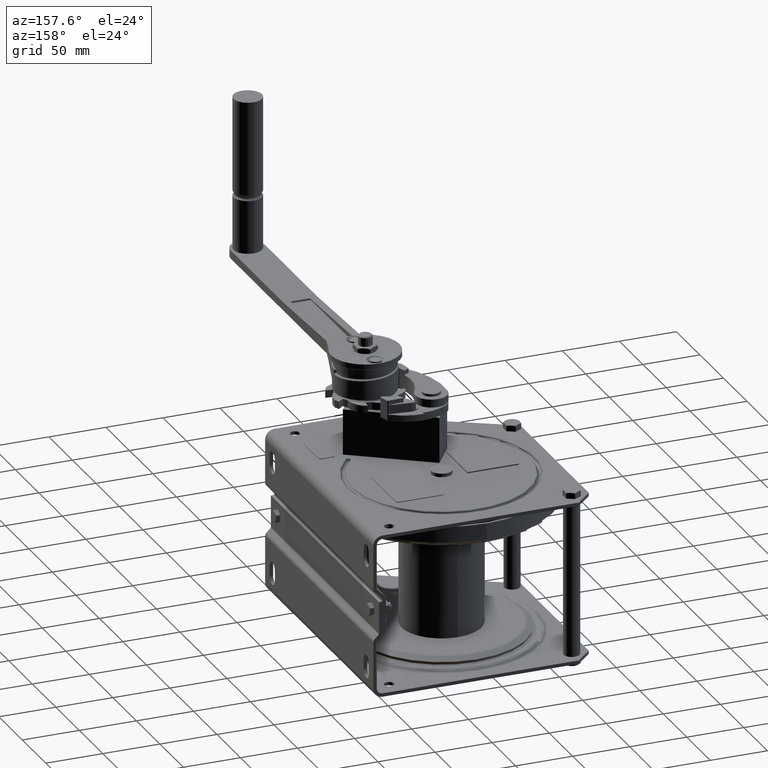
[diagram: clean part render]
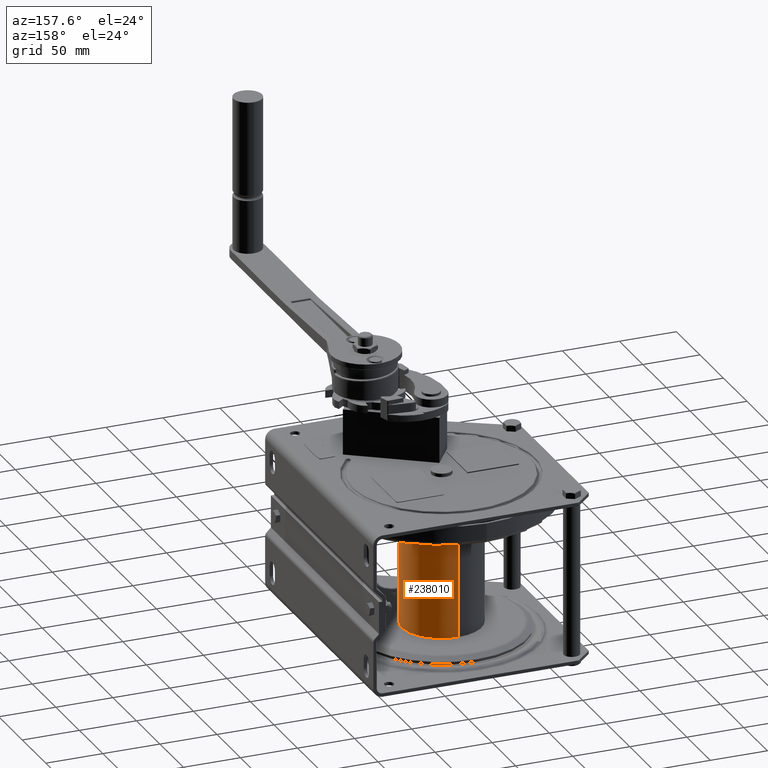
[diagram: same view with one face highlighted and labeled with its STEP entity id]
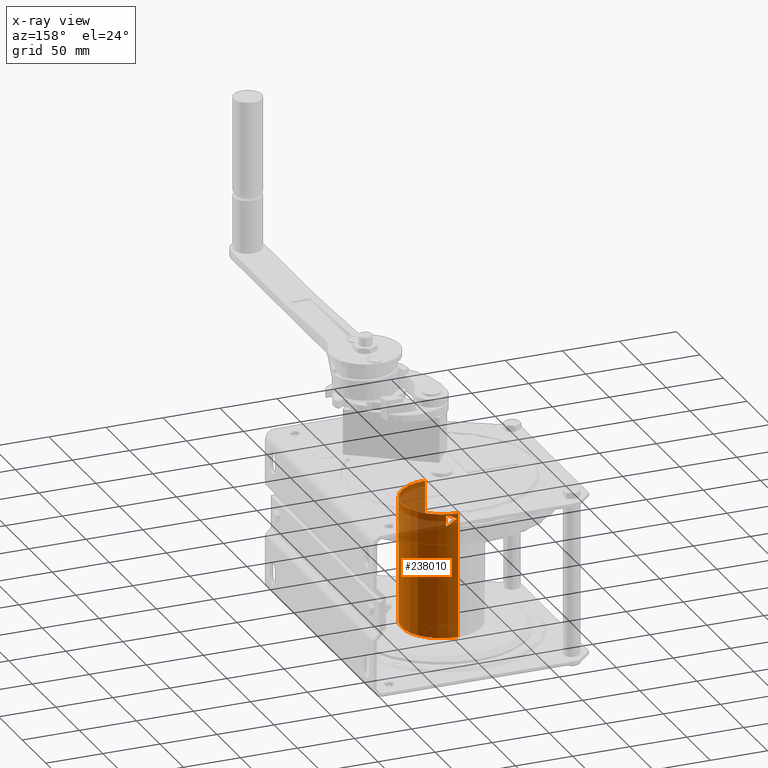
[diagram: x-ray of the same camera — body ghosted, the highlighted face saturated]
A machine part, auxiliary view. The second image highlights one B-rep face of the part: STEP entity #238010.
The next image is the same camera in x-ray: the body ghosted, the highlighted face saturated — about 18% of this face is hidden behind the body in this view.
In plain terms, the highlighted cylindrical surface (partial cylindrical patch) has radius 35 mm, axis along (0, 0, -1).
Its self-contained STEP definition (entity closure, byte-faithful):
#232930=CARTESIAN_POINT('',(-38.9683450918841,-260.918201438849,0.));
#232940=DIRECTION('',(1.,0.,0.));
#232950=DIRECTION('',(0.,-1.,0.));
#232960=AXIS2_PLACEMENT_3D('',#232930,#232940,#232950);
#232970=CIRCLE('',#232960,35.);
#232980=CARTESIAN_POINT('',(-38.9683450918841,-225.918201438849,
-4.28626379701574E-15));
#232990=VERTEX_POINT('',#232980);
#233000=CARTESIAN_POINT('',(-38.9683450918841,-295.918201438849,0.));
#233010=VERTEX_POINT('',#233000);
#233040=CARTESIAN_POINT('',(-38.9683450918841,-225.919093943116,
-0.249948999013061));
#233050=VERTEX_POINT('',#233040);
#233060=EDGE_CURVE('',#233050,#232990,#232970,.T.);
#233080=EDGE_CURVE('',#233010,#233050,#232970,.T.);
#234020=CARTESIAN_POINT('',(-143.468345091884,-285.918201438849,-10.));
#234030=DIRECTION('',(-6.12323399573677E-17,0.,-1.));
#234040=DIRECTION('',(0.,-1.,0.));
#234050=AXIS2_PLACEMENT_3D('',#234020,#234030,#234040);
#234060=CYLINDRICAL_SURFACE('',#234050,10.);
#234130=CARTESIAN_POINT('',(-147.468345091884,-295.083352828761,
-7.59884402421954));
#234140=VERTEX_POINT('',#234130);
#234170=CARTESIAN_POINT('',(-35.9683450918841,-260.918201438849,0.));
#234180=DIRECTION('',(1.,0.,0.));
#234190=DIRECTION('',(0.,-1.,0.));
#234200=AXIS2_PLACEMENT_3D('',#234170,#234180,#234190);
#234210=CYLINDRICAL_SURFACE('',#234200,35.);
#234220=CARTESIAN_POINT('',(-147.468345091768,-295.083352828811,
-7.59884402399263));
#234230=CARTESIAN_POINT('',(-147.325440111651,-295.14572167534,
-7.31842754525649));
#234240=CARTESIAN_POINT('',(-147.181557377765,-295.20453839995,
-7.03769157095227));
#234250=CARTESIAN_POINT('',(-147.036838732304,-295.259820845477,
-6.75671344148383));
#234260=CARTESIAN_POINT('',(-146.892120088024,-295.315103290552,
-6.4757353143086));
#234270=CARTESIAN_POINT('',(-146.746565505664,-295.366851433162,
-6.19451503984975));
#234280=CARTESIAN_POINT('',(-146.600314149062,-295.415083549567,
-5.91313154252594));
#234290=CARTESIAN_POINT('',(-146.307811392201,-295.511547796775,
-5.35036446388387));
#234300=CARTESIAN_POINT('',(-146.012523692891,-295.593946746253,
-4.78694356591658));
#234310=CARTESIAN_POINT('',(-145.715537025856,-295.662437089323,
-4.22351619673689));
#234320=CARTESIAN_POINT('',(-145.567037334468,-295.696683727094,
-3.94179045033287));
#234330=CARTESIAN_POINT('',(-145.418160922785,-295.727445555819,
-3.66015487839651));
#234340=CARTESIAN_POINT('',(-145.268813509913,-295.754781813943,
-3.37826401715791));
#234350=CARTESIAN_POINT('',(-145.119477636553,-295.782115959897,
-3.09639493656417));
#234360=CARTESIAN_POINT('',(-144.969730977847,-295.806010622822,
-2.81438487289494));
#234370=CARTESIAN_POINT('',(-144.819693308609,-295.826473639246,
-2.53229776744567));
#234380=CARTESIAN_POINT('',(-144.669651826217,-295.84693717573,
-2.25020349285244));
#234390=CARTESIAN_POINT('',(-144.519335826542,-295.863967351479,
-1.96806316421971));
#234400=CARTESIAN_POINT('',(-144.368817036788,-295.877576433117,
-1.68585290288933));
#234410=CARTESIAN_POINT('',(-144.218294330259,-295.891185868887,
-1.40363529793184));
#234420=CARTESIAN_POINT('',(-144.067559649131,-295.901374153535,
-1.12133069659689));
#234430=CARTESIAN_POINT('',(-143.916729589962,-295.908143948287,
-0.839001302858227));
#234440=B_SPLINE_CURVE_WITH_KNOTS('',3,(#234220,#234230,#234240,#234250,
#234260,#234270,#234280,#234290,#234300,#234310,#234320,#234330,#234340,
#234350,#234360,#234370,#234380,#234390,#234400,#234410,#234420,#234430)
,.UNSPECIFIED.,.F.,.F.,(4,3,3,3,3,3,3,4),(0.,0.962581418104836,
1.92504170407121,3.84842834287451,4.8089370842647,5.76942830505837,
6.72984760557959,7.69032156796743),.UNSPECIFIED.);
#234450=SURFACE_CURVE('',#234440,(#234060,#234210),.CURVE_3D.);
#234460=CARTESIAN_POINT('',(-143.916729589962,-295.908143948287,
-0.839001302858227));
#234470=VERTEX_POINT('',#234460);
#234480=EDGE_CURVE('',#234140,#234470,#234450,.T.);
#234500=CARTESIAN_POINT('',(-135.468345091884,-298.853036883694,
-3.5527136788005E-15));
#234510=DIRECTION('',(0.,-1.,0.));
#234520=DIRECTION('',(1.,0.,-6.12323399573677E-17));
#234530=AXIS2_PLACEMENT_3D('',#234500,#234510,#234520);
#234540=CONICAL_SURFACE('',#234530,11.4348354448452,0.78539816339745);
#235390=CARTESIAN_POINT('',(-140.069750117777,-295.322963647538,
-6.42746741443283));
#235400=VERTEX_POINT('',#235390);
#235430=CARTESIAN_POINT('',(-140.069750117777,-295.322963647538,
-6.42746741443283));
#235440=CARTESIAN_POINT('',(-140.008492185176,-295.300826894131,
-6.54596038964702));
#235450=CARTESIAN_POINT('',(-139.947358753231,-295.278058463843,
-6.6644434834667));
#235460=CARTESIAN_POINT('',(-139.886361431421,-295.254656497177,
-6.7829089649965));
#235470=CARTESIAN_POINT('',(-139.825364109645,-295.231254530524,
-6.90137444645938));
#235480=CARTESIAN_POINT('',(-139.764502898105,-295.207219027942,
-7.01982231485038));
#235490=CARTESIAN_POINT('',(-139.703789491544,-295.182548211933,
-7.13824489730203));
#235500=CARTESIAN_POINT('',(-139.643076084953,-295.157877395911,
-7.25666747981379));
#235510=CARTESIAN_POINT('',(-139.582510483378,-295.132571266926,
-7.37506477566566));
#235520=CARTESIAN_POINT('',(-139.522104469048,-295.106628123907,
-7.49342917497956));
#235530=CARTESIAN_POINT('',(-139.461698454632,-295.08068498085,
-7.61179357446272));
#235540=CARTESIAN_POINT('',(-139.401452027429,-295.054104824235,
-7.73012507675286));
#235550=CARTESIAN_POINT('',(-139.341377059975,-295.026886023552,
-7.84841613965964));
#235560=B_SPLINE_CURVE_WITH_KNOTS('',3,(#235430,#235440,#235450,#235460,
#235470,#235480,#235490,#235500,#235510,#235520,#235530,#235540,#235550)
,.UNSPECIFIED.,.F.,.F.,(4,3,3,3,4),(0.,0.405755124734504,
0.811707103973105,1.21782342226261,1.62407242181275),.UNSPECIFIED.);
#235570=SURFACE_CURVE('',#235560,(#234060,#234210),.CURVE_3D.);
#235580=CARTESIAN_POINT('',(-139.341377059975,-295.026886023552,
-7.84841613965976));
#235590=VERTEX_POINT('',#235580);
#235600=EDGE_CURVE('',#235400,#235590,#235570,.T.);
#236630=CARTESIAN_POINT('',(-35.9683450918841,-260.918201438849,0.));
#236640=DIRECTION('',(1.,0.,0.));
#236650=DIRECTION('',(0.,-1.,0.));
#236660=AXIS2_PLACEMENT_3D('',#236630,#236640,#236650);
#236670=CYLINDRICAL_SURFACE('',#236660,35.);
#236680=ORIENTED_EDGE('',*,*,#233060,.F.);
#236690=CARTESIAN_POINT('',(-35.9683450918841,-225.918201438849,
-4.28626379701574E-15));
#236700=DIRECTION('',(1.,0.,0.));
#236710=VECTOR('',#236700,1.);
#236720=LINE('',#236690,#236710);
#236730=CARTESIAN_POINT('',(-148.968345091884,-225.918201438849,
-4.28626379701574E-15));
#236740=VERTEX_POINT('',#236730);
#236750=EDGE_CURVE('',#236740,#232990,#236720,.T.);
#236760=ORIENTED_EDGE('',*,*,#236750,.T.);
#236770=CARTESIAN_POINT('',(-148.968345091884,-260.918201438849,0.));
#236780=DIRECTION('',(1.,0.,0.));
#236790=DIRECTION('',(0.,-1.,0.));
#236800=AXIS2_PLACEMENT_3D('',#236770,#236780,#236790);
#236810=CIRCLE('',#236800,35.);
#236820=CARTESIAN_POINT('',(-148.968345091884,-225.919093943116,
-0.249948999013076));
#236830=VERTEX_POINT('',#236820);
#236840=EDGE_CURVE('',#236830,#236740,#236810,.T.);
#236850=ORIENTED_EDGE('',*,*,#236840,.T.);
#236860=CARTESIAN_POINT('',(-148.968345091884,-295.918201438849,0.));
#236870=VERTEX_POINT('',#236860);
#236880=EDGE_CURVE('',#236870,#236830,#236810,.T.);
#236890=ORIENTED_EDGE('',*,*,#236880,.T.);
#236900=CARTESIAN_POINT('',(-35.9683450918841,-295.918201438849,0.));
#236910=DIRECTION('',(1.,0.,0.));
#236920=VECTOR('',#236910,1.);
#236930=LINE('',#236900,#236920);
#236940=EDGE_CURVE('',#236870,#233010,#236930,.T.);
#236950=ORIENTED_EDGE('',*,*,#236940,.F.);
#236960=ORIENTED_EDGE('',*,*,#233080,.F.);
#236970=EDGE_LOOP('',(#236960,#236950,#236890,#236850,#236760,#236680));
#236980=FACE_OUTER_BOUND('',#236970,.T.);
#236990=CARTESIAN_POINT('',(-140.069750117779,-295.322963647541,
-6.42746741444121));
#237000=CARTESIAN_POINT('',(-140.196464336354,-295.33674455031,
-6.35370139553831));
#237010=CARTESIAN_POINT('',(-140.321131677864,-295.35085908819,
-6.27683584867277));
#237020=CARTESIAN_POINT('',(-140.443524866962,-295.365222618656,
-6.1969937742407));
#237030=CARTESIAN_POINT('',(-140.565918420972,-295.379586191947,
-6.11715146176167));
#237040=CARTESIAN_POINT('',(-140.686036673117,-295.394198513068,
-6.03433359561354));
#237050=CARTESIAN_POINT('',(-140.803673406592,-295.408972708105,
-5.94867188974558));
#237060=CARTESIAN_POINT('',(-140.921249294917,-295.423739261498,
-5.86305449061007));
#237070=CARTESIAN_POINT('',(-141.03691018196,-295.438738589521,
-5.7741853756114));
#237080=CARTESIAN_POINT('',(-141.150376082324,-295.453882966303,
-5.68213880808841));
#237090=CARTESIAN_POINT('',(-141.263838552689,-295.469026885281,
-5.59009502307145));
#237100=CARTESIAN_POINT('',(-141.375090775184,-295.484313799798,
-5.49488511641187));
#237110=CARTESIAN_POINT('',(-141.483821068822,-295.499644794013,
-5.39664483485828));
#237120=CARTESIAN_POINT('',(-141.59255110661,-295.514975752153,
-5.29840478447099));
#237130=CARTESIAN_POINT('',(-141.698757279006,-295.530350402599,
-5.19713594713857));
#237140=CARTESIAN_POINT('',(-141.802142292596,-295.545666056756,
-5.09300443113764));
#237150=CARTESIAN_POINT('',(-141.905527222676,-295.560981698542,
-4.98887299924954));
#237160=CARTESIAN_POINT('',(-142.006089121955,-295.576237939489,
-4.88188071231229));
#237170=CARTESIAN_POINT('',(-142.103551853745,-295.591331097849,
-4.77221957271242));
#237180=CARTESIAN_POINT('',(-142.201014662486,-295.606424268125,
-4.66255834652959));
#237190=CARTESIAN_POINT('',(-142.295376548947,-295.621353951629,
-4.55023030786549));
#237200=CARTESIAN_POINT('',(-142.386388242627,-295.636018293801,
-4.43544730844481));
#237210=CARTESIAN_POINT('',(-142.477400165756,-295.650682672944,
-4.32066401964641));
#237220=CARTESIAN_POINT('',(-142.565060328549,-295.665081327983,
-4.20342798779397));
#237230=CARTESIAN_POINT('',(-142.649150822278,-295.679116934681,
-4.08396301300826));
#237240=CARTESIAN_POINT('',(-142.733245477903,-295.693153236045,
-3.9644921255358));
#237250=CARTESIAN_POINT('',(-142.813753725506,-295.70682351898,
-3.84281863596805));
#237260=CARTESIAN_POINT('',(-142.890535089789,-295.720044798119,
-3.71909919158471));
#237270=CARTESIAN_POINT('',(-142.928950890092,-295.726659762881,
-3.65719899596538));
#237280=CARTESIAN_POINT('',(-142.966528034265,-295.733178634953,
-3.59463456610807));
#237290=CARTESIAN_POINT('',(-143.003224808715,-295.739587721922,
-3.53143842152337));
#237300=CARTESIAN_POINT('',(-143.039921544267,-295.745996802098,
-3.46824234392375));
#237310=CARTESIAN_POINT('',(-143.075737823277,-295.752296077587,
-3.40441466397584));
#237320=CARTESIAN_POINT('',(-143.110633487671,-295.75847207083,
-3.33999136081335));
#237330=CARTESIAN_POINT('',(-143.145529122389,-295.764648058821,
-3.27556811243844));
#237340=CARTESIAN_POINT('',(-143.17950405716,-295.770700744801,
-3.21054936510515));
#237350=CARTESIAN_POINT('',(-143.212520191477,-295.776617021362,
-3.14497425694382));
#237360=CARTESIAN_POINT('',(-143.245536304443,-295.782533294097,
-3.07939919118806));
#237370=CARTESIAN_POINT('',(-143.277593534099,-295.788313137798,
-3.01326790038692));
#237380=CARTESIAN_POINT('',(-143.308656287411,-295.793943965323,
-2.94662234212093));
#237390=CARTESIAN_POINT('',(-143.339719026924,-295.799574790347,
-2.87997681346062));
#237400=CARTESIAN_POINT('',(-143.369787210858,-295.805056580087,
-2.81281716398234));
#237410=CARTESIAN_POINT('',(-143.398828150253,-295.810377410076,
-2.74518778828595));
#237420=CARTESIAN_POINT('',(-143.427869082696,-295.815698238791,
-2.67755842878022));
#237430=CARTESIAN_POINT('',(-143.455882696214,-295.820858089523,
-2.60945949966685));
#237440=CARTESIAN_POINT('',(-143.482839546407,-295.825845832476,
-2.54093740342014));
#237450=CARTESIAN_POINT('',(-143.509796395828,-295.830833575285,
-2.47241530913707));
#237460=CARTESIAN_POINT('',(-143.535696413682,-295.835649193339,
-2.40347021309857));
#237470=CARTESIAN_POINT('',(-143.560513680145,-295.840282470223,
-2.33415004620115));
#237480=CARTESIAN_POINT('',(-143.585330951358,-295.844915747993,
-2.26482986603711));
#237490=CARTESIAN_POINT('',(-143.609065410415,-295.849366669254,
-2.19513478761947));
#237500=CARTESIAN_POINT('',(-143.631694875725,-295.853626033416,
-2.12511373749543));
#237510=CARTESIAN_POINT('',(-143.654324350627,-295.857885399385,
-2.05509265769451));
#237520=CARTESIAN_POINT('',(-143.675848779832,-295.861953194923,
-1.98474578408298));
#237530=CARTESIAN_POINT('',(-143.696249859953,-295.865821318371,
-1.91412245075151));
#237540=CARTESIAN_POINT('',(-143.716650953773,-295.869689444415,
-1.84349907000183));
#237550=CARTESIAN_POINT('',(-143.735928656667,-295.873357887392,
-1.7725994103487));
#237560=CARTESIAN_POINT('',(-143.754068601154,-295.876819705243,
-1.70147256942807));
#237570=CARTESIAN_POINT('',(-143.772208562627,-295.880281526337,
-1.63034566190328));
#237580=CARTESIAN_POINT('',(-143.789210735149,-295.883536713994,
-1.55899175400967));
#237590=CARTESIAN_POINT('',(-143.805064653013,-295.886579521028,
-1.48745900844914));
#237600=CARTESIAN_POINT('',(-143.820918590223,-295.889622331774,
-1.41592617559911));
#237610=CARTESIAN_POINT('',(-143.835624254549,-295.892452756506,
-1.344214682728));
#237620=CARTESIAN_POINT('',(-143.849174945952,-295.895066249986,
-1.27237100857643));
#237630=CARTESIAN_POINT('',(-143.862722359876,-295.897679111346,
-1.2005447111177));
#237640=CARTESIAN_POINT('',(-143.875127013252,-295.900077392138,
-1.12852999395404));
#237650=CARTESIAN_POINT('',(-143.886391703851,-295.902258915092,
-1.05627766186038));
#237660=CARTESIAN_POINT('',(-143.897655053907,-295.904440178436,
-0.984033928087879));
#237670=CARTESIAN_POINT('',(-143.907771796913,-295.906403399068,
-0.911589649182646));
#237680=CARTESIAN_POINT('',(-143.916729589962,-295.908143948288,
-0.839001302873498));
#237690=B_SPLINE_CURVE_WITH_KNOTS('',3,(#236990,#237000,#237010,#237020,
#237030,#237040,#237050,#237060,#237070,#237080,#237090,#237100,#237110,
#237120,#237130,#237140,#237150,#237160,#237170,#237180,#237190,#237200,
#237210,#237220,#237230,#237240,#237250,#237260,#237270,#237280,#237290,
#237300,#237310,#237320,#237330,#237340,#237350,#237360,#237370,#237380,
#237390,#237400,#237410,#237420,#237430,#237440,#237450,#237460,#237470,
#237480,#237490,#237500,#237510,#237520,#237530,#237540,#237550,#237560,
#237570,#237580,#237590,#237600,#237610,#237620,#237630,#237640,#237650,
#237660,#237670,#237680),.UNSPECIFIED.,.F.,.F.,(4,3,3,3,3,3,3,3,3,3,3,3,
3,3,3,3,3,3,3,3,3,3,3,4),(0.,0.441195311615186,0.880885047804408,
1.32054740407049,1.76194518047936,2.2043152780822,2.64690452129513,
3.08901301132804,3.53002934287668,3.96948466244793,4.18925940911294,
4.40959733686588,4.63038115322217,4.85149115060468,5.07280713505581,
5.29421026387003,5.51558484208665,5.73682012907976,5.95781220712431,
6.17846596342078,6.39869723517543,6.61843516344594,6.83783739244973,
7.05731007655018),.UNSPECIFIED.);
#237700=SURFACE_CURVE('',#237690,(#234540,#234210),.CURVE_3D.);
#237710=EDGE_CURVE('',#235400,#234470,#237700,.T.);
#237720=ORIENTED_EDGE('',*,*,#237710,.F.);
#237730=ORIENTED_EDGE('',*,*,#234480,.T.);
#237740=CARTESIAN_POINT('',(-132.557450580084,-260.918201438849,0.));
#237750=DIRECTION('',(-0.916515138991168,0.4,5.61203665667813E-17));
#237760=DIRECTION('',(-0.4,-0.916515138991168,-1.28587913910472E-16));
#237770=AXIS2_PLACEMENT_3D('',#237740,#237750,#237760);
#237780=ELLIPSE('',#237770,38.1881307912987,35.);
#237790=CARTESIAN_POINT('',(-147.195951674312,-294.459221101346,-10.));
#237800=VERTEX_POINT('',#237790);
#237810=EDGE_CURVE('',#237800,#234140,#237780,.T.);
#237820=ORIENTED_EDGE('',*,*,#237810,.T.);
#237830=CARTESIAN_POINT('',(-35.9683450918841,-294.459221101346,-10.));
#237840=DIRECTION('',(1.,0.,0.));
#237850=VECTOR('',#237840,1.);
#237860=LINE('',#237830,#237850);
#237870=CARTESIAN_POINT('',(-138.088476459293,-294.459221101346,-10.));
#237880=VERTEX_POINT('',#237870);
#237890=EDGE_CURVE('',#237800,#237880,#237860,.T.);
#237900=ORIENTED_EDGE('',*,*,#237890,.F.);
#237910=CARTESIAN_POINT('',(-64.059657628427,-260.918201438849,0.));
#237920=DIRECTION('',(0.412696803190931,-0.910868458470259,
-2.52703909523059E-17));
#237930=DIRECTION('',(0.910868458470259,0.412696803190931,
1.1449523215368E-17));
#237940=AXIS2_PLACEMENT_3D('',#237910,#237920,#237930);
#237950=ELLIPSE('',#237940,84.808023055627,35.);
#237960=EDGE_CURVE('',#235590,#237880,#237950,.T.);
#237970=ORIENTED_EDGE('',*,*,#237960,.T.);
#237980=ORIENTED_EDGE('',*,*,#235600,.T.);
#237990=EDGE_LOOP('',(#237980,#237970,#237900,#237820,#237730,#237720));
#238000=FACE_BOUND('',#237990,.T.);
#238010=ADVANCED_FACE('',(#236980,#238000),#236670,.T.);